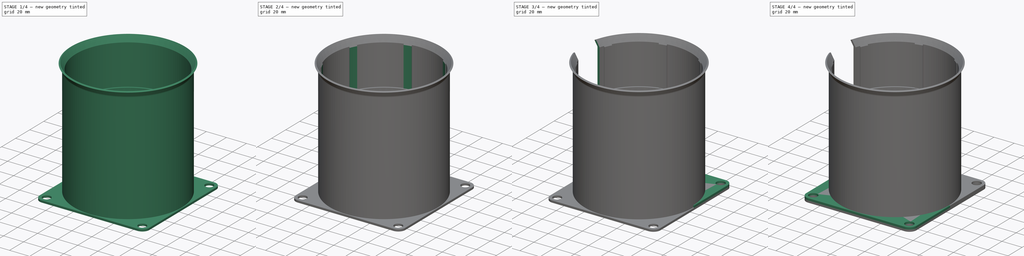
[diagram: build sequence overview — one tinted view per stage of 4, left to right]
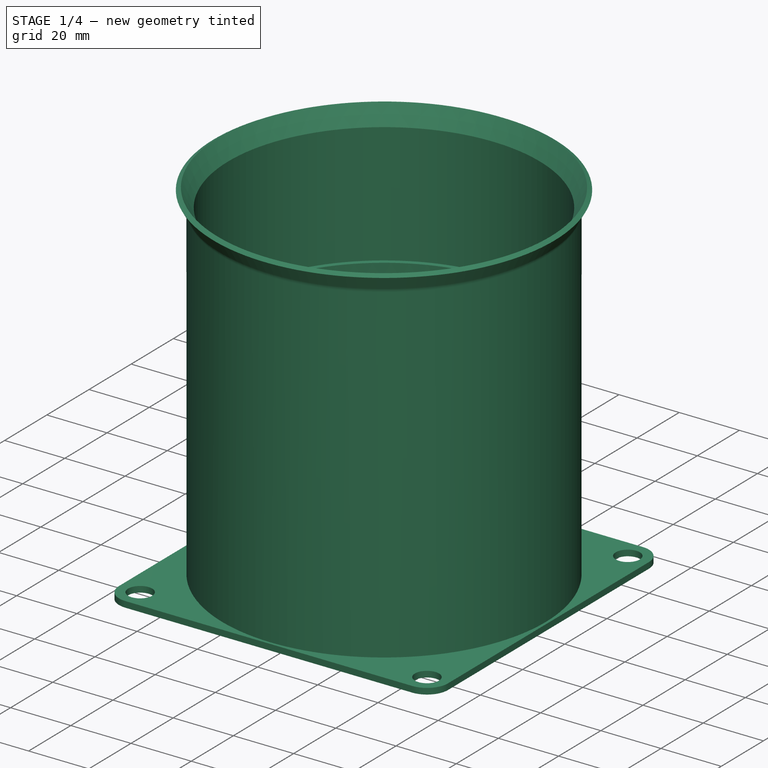
[diagram: stage 1 of 4 — iso view after this stage's code; geometry added in this stage tinted green]
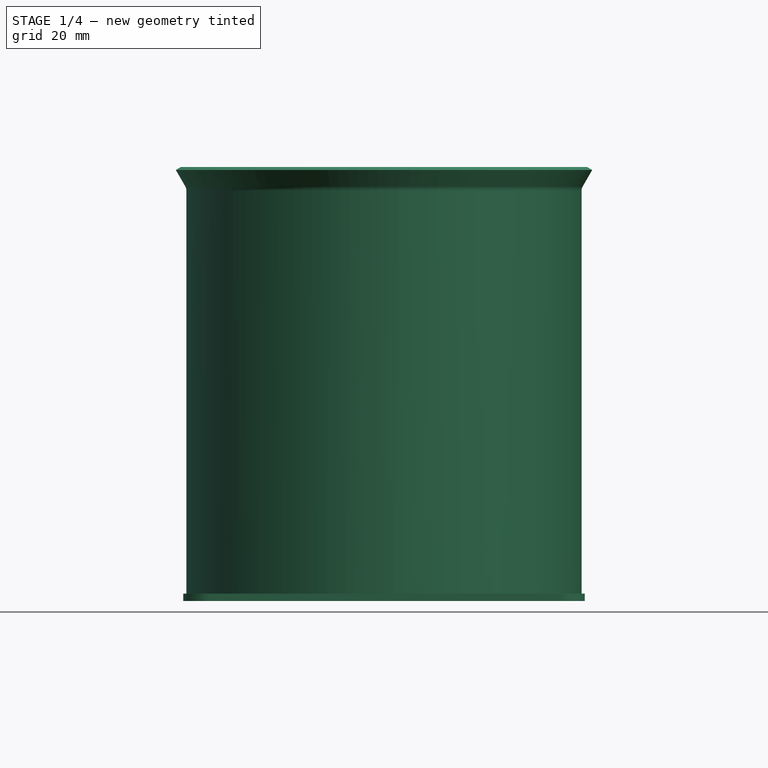
[diagram: stage 1 of 4 — front view after this stage's code; geometry added in this stage tinted green]
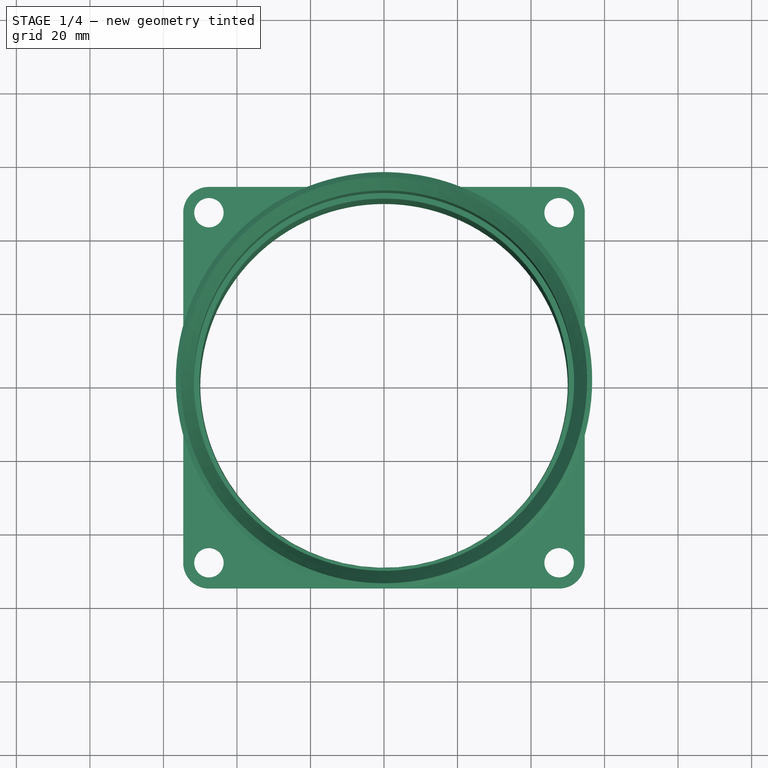
[diagram: stage 1 of 4 — top view after this stage's code; geometry added in this stage tinted green]
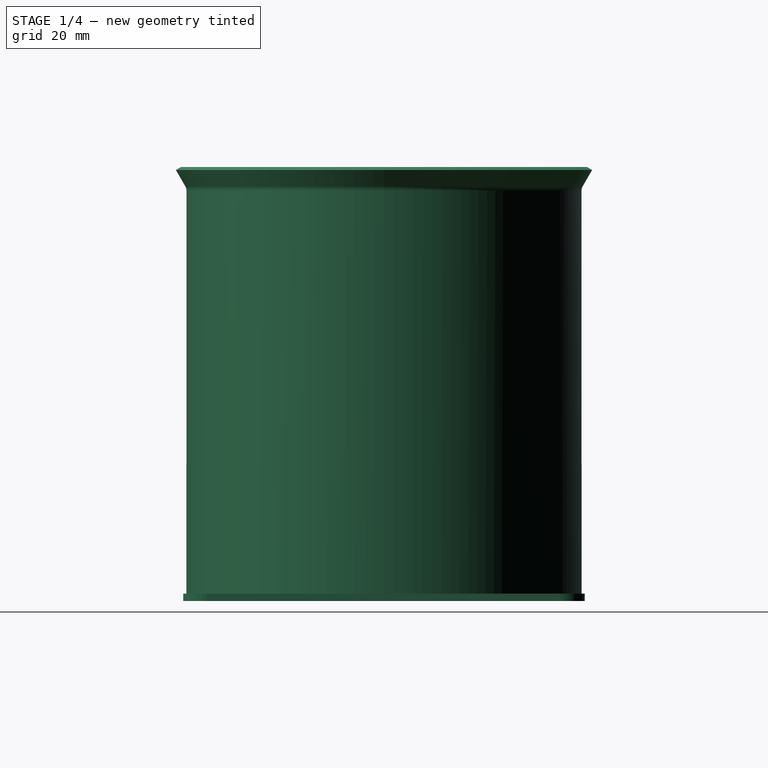
[diagram: stage 1 of 4 — right view after this stage's code; geometry added in this stage tinted green]
FCSTD DOCUMENT  (FreeCAD 0.20R29177 (Git))
Label: Фланец подложек26.01.22
License: All rights reserved
LicenseURL: http://en.wikipedia.org/wiki/All_rights_reserved
objects: Sketcher::SketchObject×11, PartDesign::Mirrored×7, PartDesign::MultiTransform×5, PartDesign::Pad×3, PartDesign::Revolution×3, PartDesign::PolarPattern×3, PartDesign::Body×3, PartDesign::Plane×2, PartDesign::Pocket×1
note: 45 computed .brp shape members not serialized (recipe doc carries the construction recipe); baked Part::Feature solids carry a one-line shape summary decoded from their .brp

FEATURE [Sketcher::SketchObject] Sketch
  FullyConstrained = false
  MapMode = 5
  Support = -> [XY_Plane]
  sketch-geometry (8):
    g0: LineSegment StartX=0 StartY=0 StartZ=0 EndX=84.7475 EndY=84.7475 EndZ=0
    g1: ArcOfCircle CenterX=47.625 CenterY=47.625 CenterZ=0 NormalX=0 NormalY=0 NormalZ=1 AngleXU=0 Radius=4 StartAngle=3.92699 EndAngle=7.06858
    g2: ArcOfCircle CenterX=47.625 CenterY=47.625 CenterZ=0 NormalX=0 NormalY=0 NormalZ=1 AngleXU=0 Radius=7 StartAngle=6.28319 EndAngle=7.06858
    g3: LineSegment StartX=54.625 StartY=47.625 StartZ=0 EndX=54.625 EndY=0 EndZ=0
    g4: ArcOfCircle CenterX=0 CenterY=0 CenterZ=0 NormalX=0 NormalY=0 NormalZ=1 AngleXU=0 Radius=50 StartAngle=0 EndAngle=0.785398
    g5: LineSegment StartX=35.3553 StartY=35.3553 StartZ=0 EndX=44.7966 EndY=44.7966 EndZ=0
    g6: LineSegment StartX=50.4534 StartY=50.4534 StartZ=0 EndX=52.5747 EndY=52.5747 EndZ=0
    g7: LineSegment StartX=50 StartY=0 StartZ=0 EndX=54.625 EndY=0 EndZ=0
  constraints (24):
    c: Coincident(g0,g-1)
    c: Angle(g-1,g0) = 0.785398
    c: PointOnObject(g1,g0)
    c: PointOnObject(g1,g0)
    c: PointOnObject(g1,g0)
    c: Distance(g1,g-1) = 47.625
    c: Diameter(g1) = 8
    c: Coincident(g2,g1)
    c: PointOnObject(g2,g0)
    c: Coincident(g3,g2)
    c: PointOnObject(g3,g-1)
    c: Vertical(g3)
    c: Diameter(g2) = 14
    c: Tangent(g2,g3)
    c: Coincident(g4,g-1)
    c: PointOnObject(g4,g-1)
    c: PointOnObject(g4,g0)
    c: Diameter(g4) = 100
    c: Coincident(g5,g4)
    c: Coincident(g5,g1)
    c: Coincident(g6,g1)
    c: Coincident(g6,g2)
    c: Coincident(g7,g4)
    c: Coincident(g7,g3)
FEATURE [PartDesign::Pad] Pad
  Direction = (1,1,1)
  Length = 2
  Length2 = 100
  Profile = -> Sketch
  Reversed = true
  Type = 0
FEATURE [Sketcher::SketchObject] Sketch001
  FullyConstrained = false
  MapMode = 5
  Placement = pos=(0,0,0) rot=(1,0,0;1.5708rad)
  Support = -> [XZ_Plane]
  sketch-geometry (10):
    g0: LineSegment StartX=50 StartY=0 StartZ=0 EndX=50 EndY=57.2808 EndZ=0
    g1: LineSegment StartX=50 StartY=57.2808 StartZ=0 EndX=50.2277 EndY=70 EndZ=0
    g2: LineSegment StartX=50.2277 StartY=70 StartZ=0 EndX=51.75 EndY=70 EndZ=0
    g3: LineSegment StartX=51.75 StartY=70 StartZ=0 EndX=51.75 EndY=110 EndZ=0
    g4: LineSegment StartX=51.75 StartY=110 StartZ=0 EndX=55.25 EndY=116.062 EndZ=0
    g5: LineSegment StartX=53.75 StartY=109.594 StartZ=0 EndX=53.75 EndY=0 EndZ=0
    g6: LineSegment StartX=53.75 StartY=0 StartZ=0 EndX=50 EndY=0 EndZ=0
    g7: ArcOfCircle CenterX=56.25 CenterY=109.594 CenterZ=0 NormalX=0 NormalY=0 NormalZ=1 AngleXU=0 Radius=2.5 StartAngle=2.61799 EndAngle=3.14159
    g8: LineSegment StartX=54.0849 StartY=110.844 StartZ=0 EndX=56.6356 EndY=115.262 EndZ=0
    g9: LineSegment StartX=56.6356 StartY=115.262 StartZ=0 EndX=55.25 EndY=116.062 EndZ=0
  constraints (31):
    c: PointOnObject(g0,g-1)
    c: Vertical(g0)
    c: Coincident(g0,g1)
    c: Coincident(g1,g2)
    c: Horizontal(g2)
    c: Coincident(g2,g3)
    c: Vertical(g3)
    c: Coincident(g3,g4)
    c: PointOnObject(g5,g-1)
    c: Vertical(g5)
    c: Coincident(g5,g6)
    c: Coincident(g6,g0)
    c: Distance(g0,g-2) = 50
    c: Distance(g3,g5) = 2
    c: Distance(g2,g-2) = 51.75
    c: DistanceX(g0,g2) = 1.75
    c: Angle(g3,g4) = 2.61799
    c: Distance(g3) = 40
    c: Coincident(g7,g5)
    c: Coincident(g8,g7)
    c: Coincident(g9,g8)
    c: Coincident(g9,g4)
    c: Parallel(g8,g4)
    c: Distance(g9) = 1.6
    c: Tangent(g7,g5)
    c: Tangent(g7,g8)
    c: Perpendicular(g8,g9)
    c: Diameter(g7) = 5
    c: Distance(g4) = 7
    c: Distance(g2,g-1) = 70
    c: Distance(g6) = 3.75
FEATURE [PartDesign::Revolution] Revolution
  Angle = 360
  Axis = (0,-2e-16,1)
  Base = (0,0,0)
  BaseFeature = -> Pad
  Profile = -> Sketch001
  ReferenceAxis = -> Sketch001 [V_Axis]
  Reversed = true
FEATURE [Sketcher::SketchObject] Sketch002
  ExternalGeometry = -> [Revolution]
  FullyConstrained = true
  MapMode = 5
  Placement = pos=(5e-15,-5e-15,0) rot=(-0.281085,0.678598,0.678598;3.68962rad)
  Support = -> [Revolution]
  sketch-geometry (4):
    g0: LineSegment StartX=-72.3017 StartY=2.79e-14 StartZ=0 EndX=-72.3017 EndY=50 EndZ=0
    g1: LineSegment StartX=-72.3017 StartY=50 StartZ=0 EndX=-77.3017 EndY=39.2775 EndZ=0
    g2: LineSegment StartX=-77.3017 StartY=39.2775 StartZ=0 EndX=-77.3017 EndY=0 EndZ=0
    g3: LineSegment StartX=-77.3017 StartY=0 StartZ=0 EndX=-72.3017 EndY=2.79e-14 EndZ=0
  constraints (11):
    c: Vertical(g0)
    c: Coincident(g0,g1)
    c: Coincident(g1,g2)
    c: PointOnObject(g2,g-1)
    c: Vertical(g2)
    c: Coincident(g2,g3)
    c: Coincident(g3,g0)
    c: Distance(g3) = 5
    c: Distance(g0) = 50
    c: Angle(g1,g0) = 0.436332
    c: Coincident(g0,g-3)
FEATURE [Sketcher::SketchObject] Sketch005
  FullyConstrained = false
  MapMode = 5
  Placement = pos=(0,0,0) rot=(1,0,0;1.5708rad)
  Support = -> [XZ_Plane]
  sketch-geometry (4):
    g0: LineSegment StartX=51.25 StartY=70 StartZ=0 EndX=51.25 EndY=109.134 EndZ=0
    g1: LineSegment StartX=51.75 StartY=110 StartZ=0 EndX=51.75 EndY=70 EndZ=0
    g2: LineSegment StartX=51.75 StartY=70 StartZ=0 EndX=51.25 EndY=70 EndZ=0
    g3: LineSegment StartX=51.75 StartY=110 StartZ=0 EndX=51.25 EndY=109.134 EndZ=0
  constraints (8):
    c: Coincident(g2,g1)
    c: Coincident(g2,g0)
    c: Horizontal(g2)
    c: Vertical(g0)
    c: Coincident(g3,g1)
    c: Coincident(g3,g0)
    c: Distance(g0,g1) = 0.5
    c: Angle(g3,g1) = 0.523599
FEATURE [PartDesign::Mirrored] Mirrored001
  MirrorPlane = -> XZ_Plane
FEATURE [PartDesign::PolarPattern] PolarPattern001
  Angle = 360
  Axis = -> Sketch005 [V_Axis]
  Occurrences = 7
FEATURE [PartDesign::Mirrored] Mirrored
  MirrorPlane = -> Sketch [H_Axis]
FEATURE [PartDesign::PolarPattern] PolarPattern
  Angle = 360
  Axis = -> Sketch [N_Axis]
  Occurrences = 4
FEATURE [PartDesign::MultiTransform] MultiTransform
  BaseFeature = -> Revolution
  Originals = -> [Pad]
  Transformations = -> [Mirrored,PolarPattern]
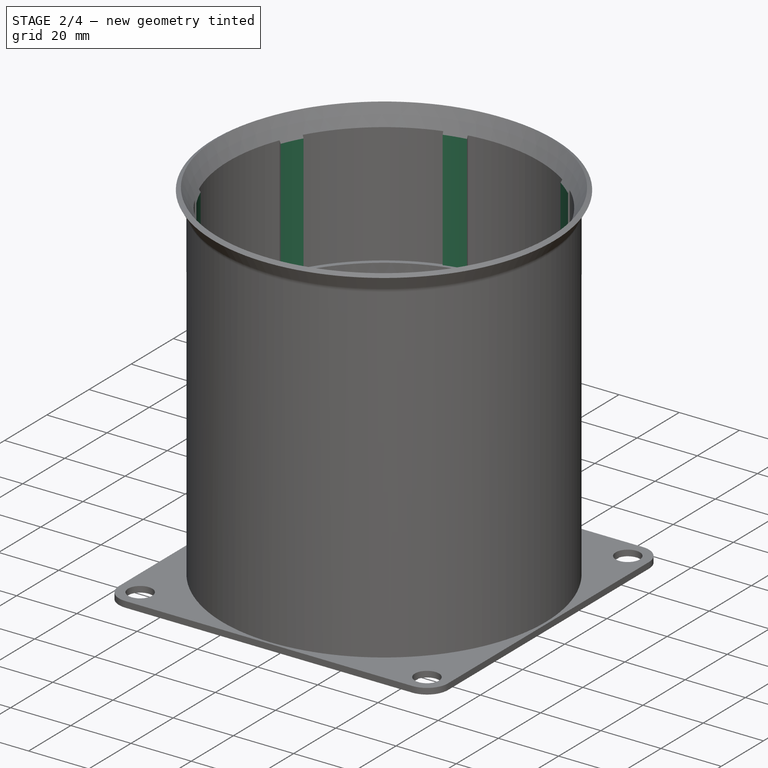
[diagram: stage 2 of 4 — iso view after this stage's code; geometry added in this stage tinted green]
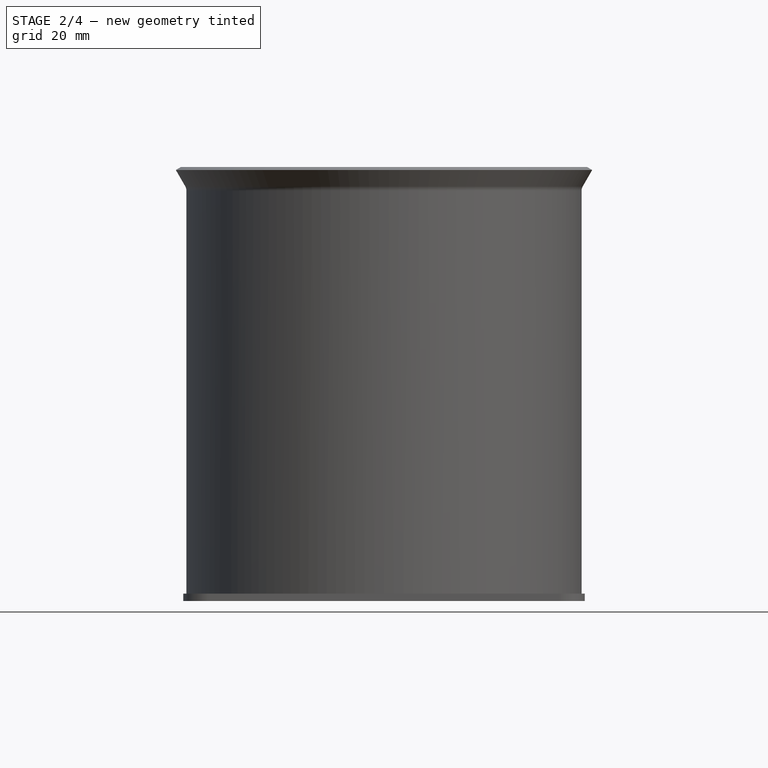
[diagram: stage 2 of 4 — front view after this stage's code; geometry added in this stage tinted green]
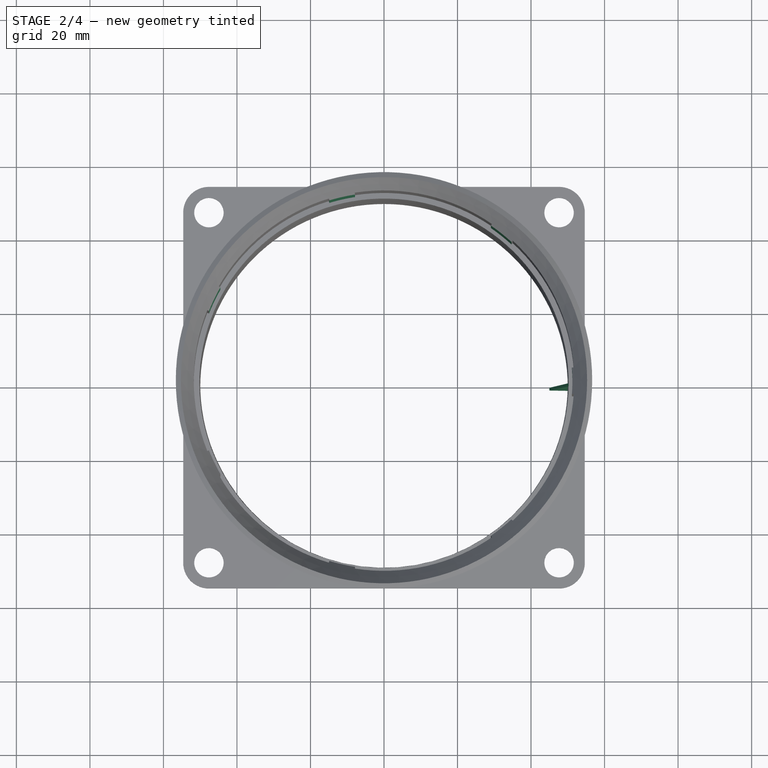
[diagram: stage 2 of 4 — top view after this stage's code; geometry added in this stage tinted green]
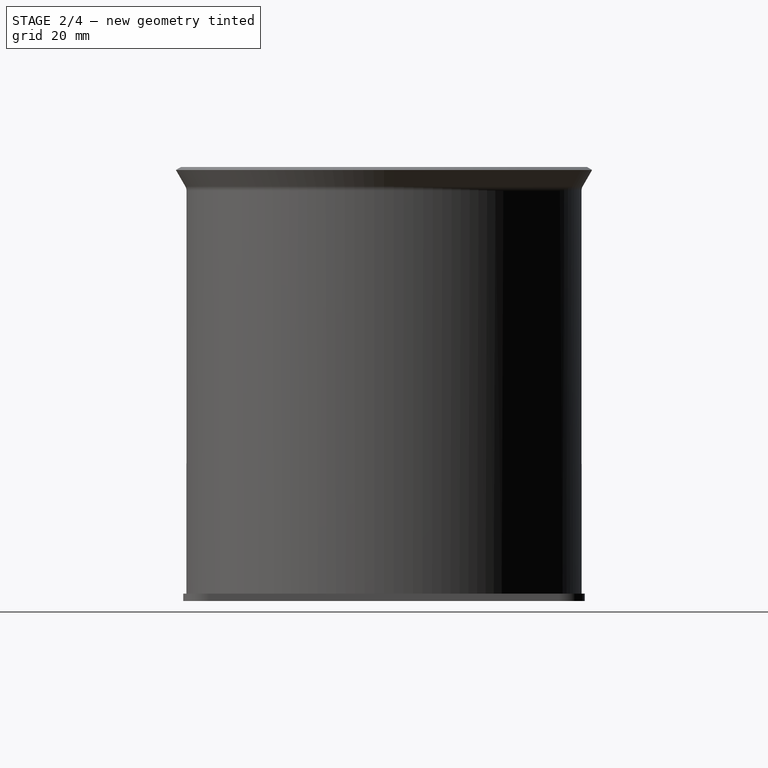
[diagram: stage 2 of 4 — right view after this stage's code; geometry added in this stage tinted green]
FEATURE [PartDesign::Plane] DatumPlane
  AttachmentOffset = pos=(0,0,0) rot=(0,1,0;1.5708rad)
  Length = 283.577
  MapMode = 7
  Placement = pos=(-50.4534,-50.4534,0) rot=(-0.281085,0.678598,0.678598;3.68962rad)
  ResizeMode = 0
  Support = -> [MultiTransform]
  Width = 259.699
FEATURE [Sketcher::SketchObject] Sketch003
  FullyConstrained = false
  MapMode = 5
  Placement = pos=(-50.4534,-50.4534,0) rot=(-0.281085,0.678598,0.678598;3.68962rad)
  Support = -> [DatumPlane]
  sketch-geometry (4):
    g0: ArcOfCircle CenterX=37.7568 CenterY=0 CenterZ=0 NormalX=0 NormalY=0 NormalZ=1 AngleXU=0 Radius=10 StartAngle=4.71239 EndAngle=7.85398
    g1: LineSegment StartX=37.7568 StartY=10 StartZ=0 EndX=0 EndY=10 EndZ=0
    g2: LineSegment StartX=37.7568 StartY=-10 StartZ=0 EndX=0 EndY=-10 EndZ=0
    g3: LineSegment StartX=0 StartY=-10 StartZ=0 EndX=0 EndY=10 EndZ=0
  constraints (10):
    c: PointOnObject(g0,g-1)
    c: Diameter(g0) = 20
    c: Tangent(g0,g1) = -1.5708
    c: Tangent(g0,g2) = 1.5708
    c: Coincident(g2,g3)
    c: PointOnObject(g3,g-2)
    c: Vertical(g3)
    c: Horizontal(g1)
    c: Horizontal(g2)
    c: Coincident(g3,g1)
FEATURE [Sketcher::SketchObject] Sketch004
  ExternalGeometry = -> [MultiTransform]
  FullyConstrained = false
  MapMode = 5
  Placement = pos=(-50.4534,-50.4534,0) rot=(-0.281085,0.678598,0.678598;3.68962rad)
  Support = -> [DatumPlane]
  sketch-geometry (8):
    g0: LineSegment StartX=-26.1242 StartY=69.3905 StartZ=0 EndX=-10.2428 EndY=69.3905 EndZ=0
    g1: LineSegment StartX=-10.2428 StartY=69.3905 StartZ=0 EndX=-10.2428 EndY=-65.5211 EndZ=0
    g2: LineSegment StartX=-10.2428 StartY=-65.5211 StartZ=0 EndX=-26.1242 EndY=-65.5211 EndZ=0
    g3: LineSegment StartX=-26.1242 StartY=-65.5211 StartZ=0 EndX=-26.1242 EndY=69.3905 EndZ=0
    g4: LineSegment StartX=-26.3519 StartY=75.8693 StartZ=0 EndX=86.9393 EndY=75.8693 EndZ=0
    g5: LineSegment StartX=86.9393 StartY=75.8693 StartZ=0 EndX=86.9393 EndY=-81.5275 EndZ=0
    g6: LineSegment StartX=86.9393 StartY=-81.5275 StartZ=0 EndX=-26.3519 EndY=-81.5275 EndZ=0
    g7: LineSegment StartX=-26.3519 StartY=-81.5275 StartZ=0 EndX=-26.3519 EndY=75.8693 EndZ=0
  constraints (18):
    c: Coincident(g0,g1)
    c: Coincident(g1,g2)
    c: Coincident(g2,g3)
    c: Coincident(g3,g0)
    c: Horizontal(g0)
    c: Horizontal(g2)
    c: Vertical(g1)
    c: Vertical(g3)
    c: Coincident(g4,g5)
    c: Coincident(g5,g6)
    c: Coincident(g6,g7)
    c: Coincident(g7,g4)
    c: Horizontal(g4)
    c: Horizontal(g6)
    c: Vertical(g5)
    c: Vertical(g7)
    c: Distance(g-4,g7) = 5
    c: Distance(g-3,g3) = 5
FEATURE [PartDesign::Revolution] Revolution002
  Angle = 4
  Axis = (0,-2e-16,1)
  Base = (0,0,0)
  BaseFeature = -> MultiTransform
  Profile = -> Sketch005
  ReferenceAxis = -> Sketch005 [V_Axis]
  Reversed = true
FEATURE [PartDesign::MultiTransform] MultiTransform001
  BaseFeature = -> Revolution002
  Originals = -> [Revolution002]
  Transformations = -> [Mirrored001,PolarPattern001]
FEATURE [PartDesign::Body] Body002
  Group = -> [Sketch007,Pad002,MultiTransform003,Mirrored004,Mirrored005]
  Origin = -> Origin002
  Tip = -> MultiTransform003
FEATURE [PartDesign::Plane] DatumPlane001
  Length = 243.45
  MapMode = 13
  Placement = pos=(-10.2146,50.1085,83.0447) rot=(0.987542,0.111269,0.111269;1.58333rad)
  ResizeMode = 0
  Support = -> [MultiTransform001]
  Width = 256.09
FEATURE [Sketcher::SketchObject] Sketch008
  ExternalGeometry = -> [MultiTransform001]
  FullyConstrained = false
  MapMode = 5
  Placement = pos=(-10.2146,50.1085,83.0447) rot=(0.987542,0.111269,0.111269;1.58333rad)
  Support = -> [DatumPlane001]
  sketch-geometry (6):
    g0: ArcOfCircle CenterX=-1.21918 CenterY=-7.31322 CenterZ=0 NormalX=0 NormalY=0 NormalZ=1 AngleXU=0 Radius=10 StartAngle=3.14159 EndAngle=6.28318
    g1: LineSegment StartX=-11.2192 StartY=-7.31323 StartZ=0 EndX=-11.2192 EndY=49.9058 EndZ=0
    g2: LineSegment StartX=8.78082 StartY=-7.31323 StartZ=0 EndX=8.78082 EndY=49.9058 EndZ=0
    g3: LineSegment StartX=-11.2192 StartY=49.9058 StartZ=0 EndX=8.78082 EndY=49.9058 EndZ=0
    g4: LineSegment StartX=-1.21918 StartY=-7.31322 StartZ=0 EndX=-4.76669 EndY=-7.94042 EndZ=0
    g5: LineSegment StartX=-1.21918 StartY=-7.31322 StartZ=0 EndX=2.38335 EndY=-7.31322 EndZ=0
  constraints (16):
    c: Coincident(g1,g0)
    c: Vertical(g1)
    c: Coincident(g2,g0)
    c: Vertical(g2)
    c: Tangent(g0,g2)
    c: Tangent(g0,g1)
    c: Coincident(g3,g2)
    c: Horizontal(g3)
    c: Diameter(g0) = 20
    c: Coincident(g4,g0)
    c: PointOnObject(g4,g-4)
    c: Coincident(g5,g0)
    c: PointOnObject(g5,g-3)
    c: Horizontal(g5)
    c: Equal(g5,g4)
    c: Coincident(g1,g3)
FEATURE [Sketcher::SketchObject] Sketch009
  FullyConstrained = true
  MapMode = 5
  Placement = pos=(0,0,0) rot=(1,0,0;1.5708rad)
  Support = -> [XZ_Plane]
  sketch-geometry (6):
    g0: LineSegment StartX=50.2287 StartY=69.9979 StartZ=0 EndX=45 EndY=-2 EndZ=0
    g1: LineSegment StartX=45 StartY=0 StartZ=0 EndX=50 EndY=0 EndZ=0
    g2: LineSegment StartX=50 StartY=0 StartZ=0 EndX=50 EndY=57.28 EndZ=0
    g3: LineSegment StartX=50 StartY=57.28 StartZ=0 EndX=50.2287 EndY=69.9979 EndZ=0
    g4: LineSegment StartX=50 StartY=0 StartZ=0 EndX=50 EndY=-2 EndZ=0
    g5: LineSegment StartX=50 StartY=-2 StartZ=0 EndX=45 EndY=-2 EndZ=0
  constraints (18):
    c: PointOnObject(g1,g-1)
    c: Coincident(g2,g1)
    c: Coincident(g3,g2)
    c: Coincident(g3,g0)
    c: DistanceX(g-1,g1) = 45
    c: Coincident(g4,g2)
    c: Vertical(g4)
    c: Vertical(g1,g0)
    c: Distance(g4) = 2
    c: Coincident(g5,g4)
    c: Horizontal(g5)
    c: Coincident(g0,g5)
    c: Distance(g2) = 57.28
    c: Vertical(g2)
    c: Angle(g2,g3) = 3.12362
    c: Distance(g3) = 12.72
    c: Horizontal(g1)
    c: Distance(g2,g-1) = 50
FEATURE [PartDesign::Revolution] Revolution003
  Angle = 0.95493
  Axis = (0,-2e-16,1)
  Base = (0,0,0)
  BaseFeature = -> MultiTransform001
  Profile = -> Sketch009
  ReferenceAxis = -> Sketch009 [V_Axis]
  Reversed = true
  expr: Angle = 0.8 / (pi * 96 / 360)
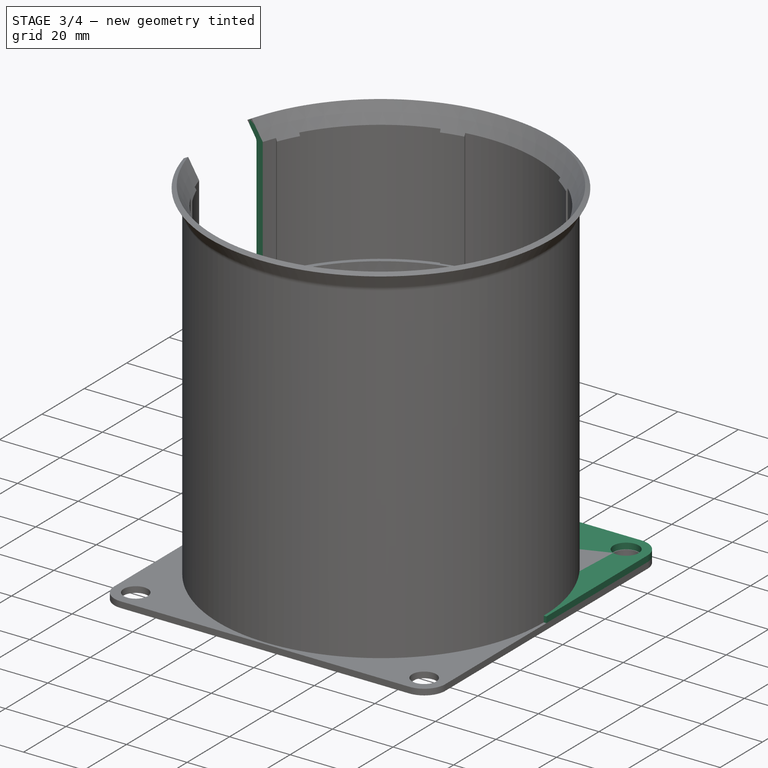
[diagram: stage 3 of 4 — iso view after this stage's code; geometry added in this stage tinted green]
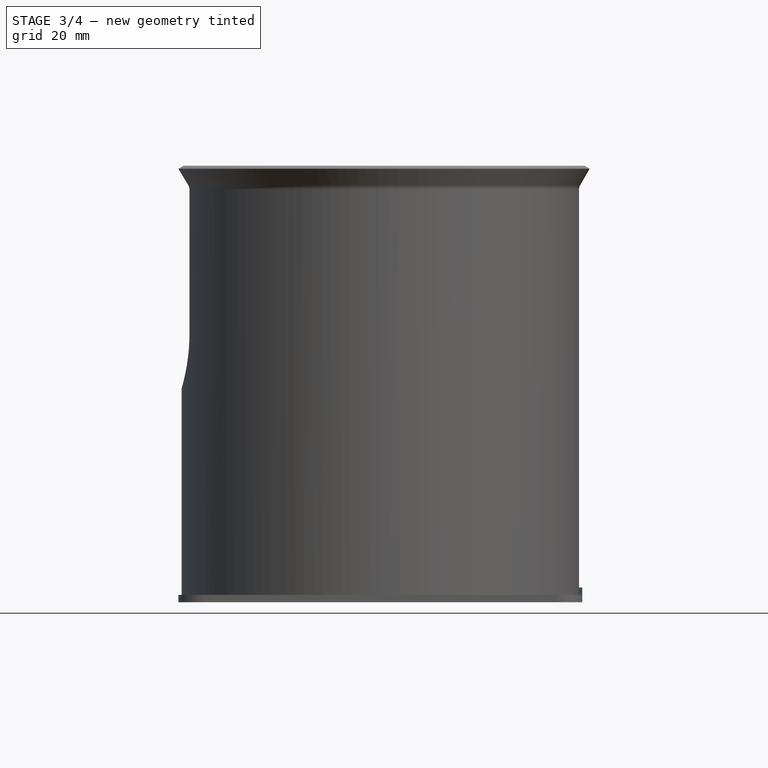
[diagram: stage 3 of 4 — front view after this stage's code; geometry added in this stage tinted green]
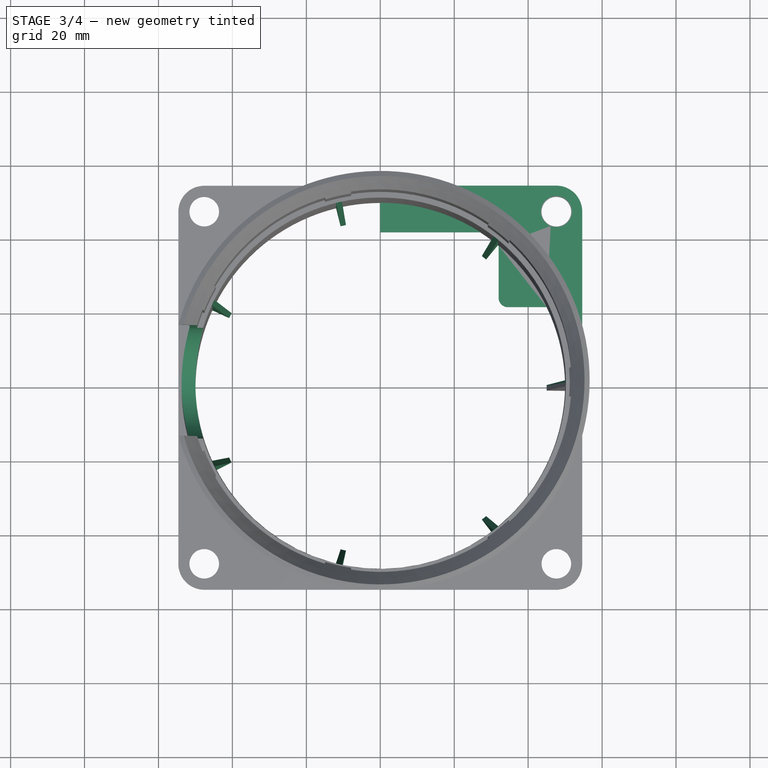
[diagram: stage 3 of 4 — top view after this stage's code; geometry added in this stage tinted green]
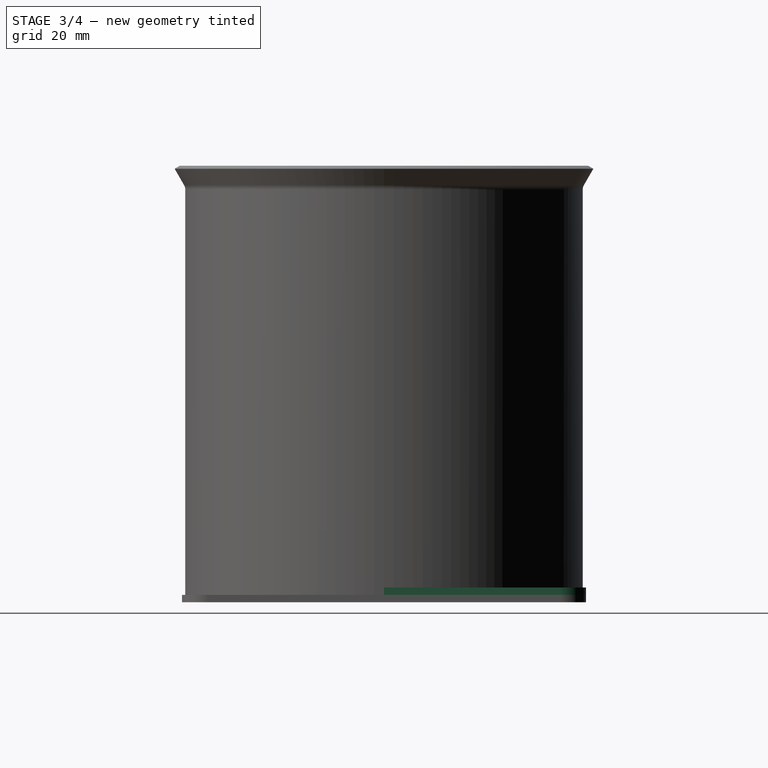
[diagram: stage 3 of 4 — right view after this stage's code; geometry added in this stage tinted green]
FEATURE [PartDesign::Body] Body001
  Group = -> [Sketch006,Pad001,MultiTransform002,Mirrored002,Mirrored003]
  Origin = -> Origin001
  Tip = -> MultiTransform002
FEATURE [Sketcher::SketchObject] Sketch007
  FullyConstrained = true
  MapMode = 5
  Support = -> [XY_Plane002]
  sketch-geometry (16):
    g0: ArcOfCircle CenterX=0 CenterY=0 CenterZ=0 NormalX=0 NormalY=0 NormalZ=1 AngleXU=0 Radius=50 StartAngle=0.876298 EndAngle=0.997283
    g1: Circle CenterX=47.625 CenterY=47.625 CenterZ=0 NormalX=0 NormalY=0 NormalZ=1 AngleXU=0 Radius=4.2
    g2: LineSegment StartX=32 StartY=38.4187 StartZ=0 EndX=32 EndY=0 EndZ=0
    g3: GeomPoint X=50 Y=0 Z=0
    g4: GeomPoint X=45.0022 Y=21.79 Z=0
    g5: ArcOfCircle CenterX=34.5 CenterY=24.29 CenterZ=0 NormalX=0 NormalY=0 NormalZ=1 AngleXU=0 Radius=2.5 StartAngle=3.14159 EndAngle=4.71239
    g6: LineSegment StartX=32 StartY=24.29 StartZ=0 EndX=32 EndY=38.4187 EndZ=0
    g7: LineSegment StartX=34.5 StartY=21.79 StartZ=0 EndX=45.0022 EndY=21.79 EndZ=0
    g8: ArcOfCircle CenterX=0 CenterY=0 CenterZ=0 NormalX=0 NormalY=0 NormalZ=1 AngleXU=0 Radius=50 StartAngle=0 EndAngle=0.450927
    g9: LineSegment StartX=27.1293 StartY=42 StartZ=0 EndX=0 EndY=42 EndZ=0
    g10: GeomPoint X=0 Y=50 Z=0
    g11: LineSegment StartX=0 StartY=42 StartZ=0 EndX=0 EndY=54.625 EndZ=0
    g12: LineSegment StartX=0 StartY=54.625 StartZ=0 EndX=47.625 EndY=54.625 EndZ=0
    g13: LineSegment StartX=50 StartY=0 StartZ=0 EndX=54.625 EndY=0 EndZ=0
    g14: LineSegment StartX=54.625 StartY=0 StartZ=0 EndX=54.625 EndY=47.625 EndZ=0
    g15: ArcOfCircle CenterX=47.625 CenterY=47.625 CenterZ=0 NormalX=0 NormalY=0 NormalZ=1 AngleXU=0 Radius=7 StartAngle=5.01984e-07 EndAngle=1.5708
  constraints (44):
    c: Diameter(g0) = 100
    c: DistanceX(g1) = 47.625
    c: DistanceY(g1) = 47.625
    c: Coincident(g0,g-1)
    c: Coincident(g2,g0)
    c: PointOnObject(g2,g-1)
    c: Vertical(g2)
    c: PointOnObject(g3,g-1)
    c: PointOnObject(g3,g0)
    c: Distance(g3,g2) = 18
    c: PointOnObject(g5,g2)
    c: Coincident(g6,g5)
    c: Coincident(g6,g0)
    c: Coincident(g7,g5)
    c: Coincident(g7,g4)
    c: Horizontal(g7)
    c: Coincident(g8,g0)
    c: Coincident(g8,g7)
    c: Coincident(g8,g3)
    c: Diameter(g5) = 5
    c: Tangent(g6,g5)
    c: Tangent(g5,g7)
    c: Coincident(g9,g0)
    c: PointOnObject(g9,g-2)
    c: Horizontal(g9)
    c: PointOnObject(g10,g-2)
    c: PointOnObject(g10,g0)
    c: Distance(g10,g9) = 8
    c: Coincident(g11,g9)
    c: PointOnObject(g11,g-2)
    c: Coincident(g12,g11)
    c: Horizontal(g12)
    c: Coincident(g13,g8)
    c: PointOnObject(g13,g-1)
    c: Coincident(g14,g13)
    c: Vertical(g14)
    c: Coincident(g15,g1)
    c: Coincident(g15,g12)
    c: Coincident(g15,g14)
    c: Tangent(g12,g15)
    c: Tangent(g15,g14)
    c: Diameter(g15) = 14
    c: Diameter(g1) = 8.4
    c: Distance(g7,g-1) = 21.79
FEATURE [PartDesign::Pad] Pad002
  Direction = (1,1,1)
  Length = 2
  Length2 = 100
  Profile = -> Sketch007
  Type = 0
FEATURE [PartDesign::Mirrored] Mirrored006
  MirrorPlane = -> XZ_Plane
FEATURE [PartDesign::PolarPattern] PolarPattern002
  Angle = 360
  Axis = -> Sketch009 [V_Axis]
  Occurrences = 7
FEATURE [PartDesign::MultiTransform] MultiTransform004
  BaseFeature = -> Revolution003
  Originals = -> [Revolution003]
  Transformations = -> [Mirrored006,PolarPattern002]
FEATURE [Sketcher::SketchObject] Sketch010
  FullyConstrained = false
  MapMode = 5
  Placement = pos=(0,0,0) rot=(0.57735,0.57735,0.57735;2.0944rad)
  Support = -> [YZ_Plane]
  sketch-geometry (4):
    g0: ArcOfCircle CenterX=0 CenterY=70.7472 CenterZ=0 NormalX=0 NormalY=0 NormalZ=1 AngleXU=0 Radius=15 StartAngle=3.14159 EndAngle=6.28319
    g1: LineSegment StartX=-15 StartY=70.7472 StartZ=0 EndX=-15 EndY=141.777 EndZ=0
    g2: LineSegment StartX=-15 StartY=141.777 StartZ=0 EndX=15 EndY=141.777 EndZ=0
    g3: LineSegment StartX=15 StartY=141.777 StartZ=0 EndX=15 EndY=70.7472 EndZ=0
  constraints (11):
    c: PointOnObject(g0,g-2)
    c: Coincident(g1,g2)
    c: Coincident(g2,g3)
    c: Horizontal(g2)
    c: Vertical(g1)
    c: Vertical(g3)
    c: Tangent(g0,g3)
    c: Tangent(g0,g1)
    c: Diameter(g0) = 30
    c: Coincident(g0,g3)
    c: Coincident(g0,g1)
FEATURE [PartDesign::Pocket] Pocket
  BaseFeature = -> MultiTransform004
  Direction = (1,1,1)
  Length = 5
  Length2 = 100
  Profile = -> Sketch010
  Type = 1
FEATURE [PartDesign::Body] Body
  Group = -> [Sketch,Pad,Sketch001,Revolution,Sketch002,MultiTransform,Mirrored,PolarPattern,DatumPlane,Sketch003,Sketch004,Sketch005,Revolution002,MultiTransform001,Mirrored001,PolarPattern001,DatumPlane001,Sketch008,Sketch009,Revolution003,MultiTransform004,Mirrored006,PolarPattern002,Sketch010,Pocket]
  Origin = -> Origin
  Tip = -> Pocket
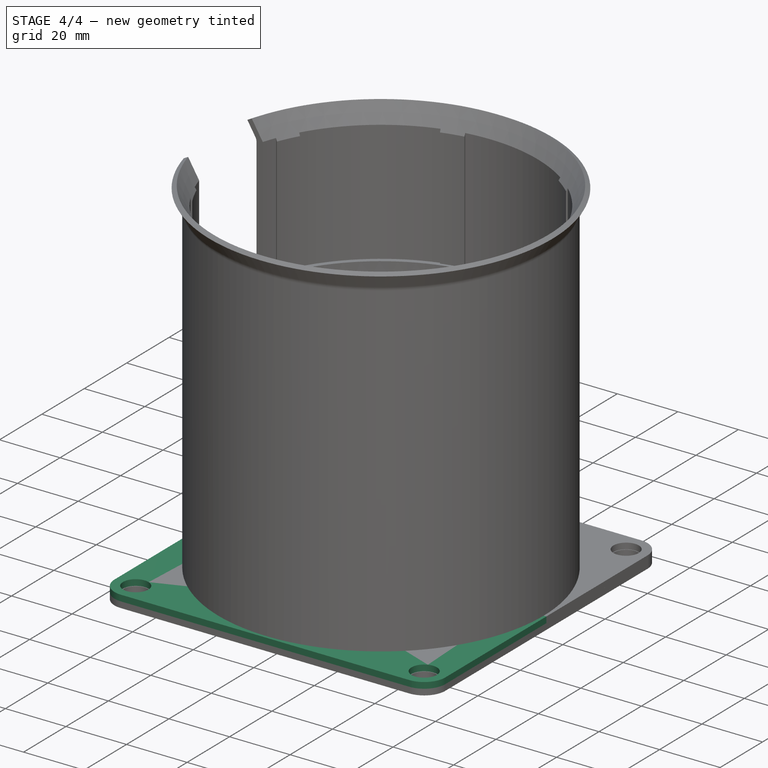
[diagram: stage 4 of 4 — iso view after this stage's code; geometry added in this stage tinted green]
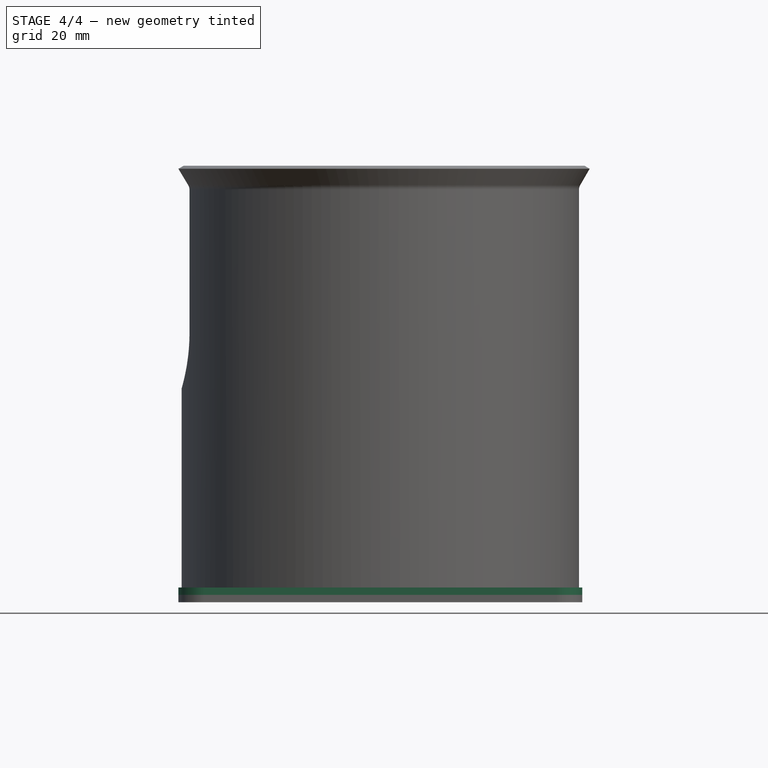
[diagram: stage 4 of 4 — front view after this stage's code; geometry added in this stage tinted green]
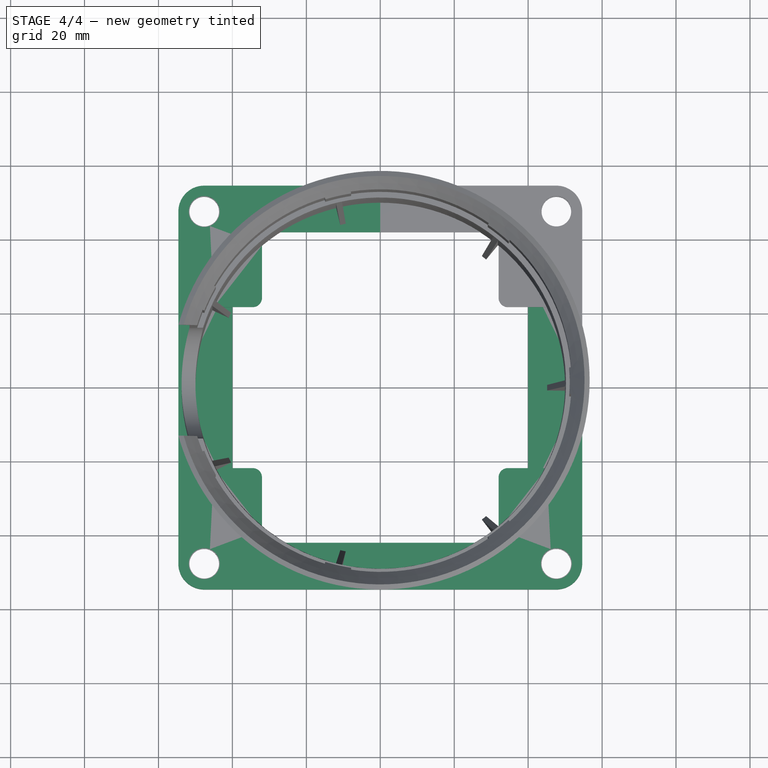
[diagram: stage 4 of 4 — top view after this stage's code; geometry added in this stage tinted green]
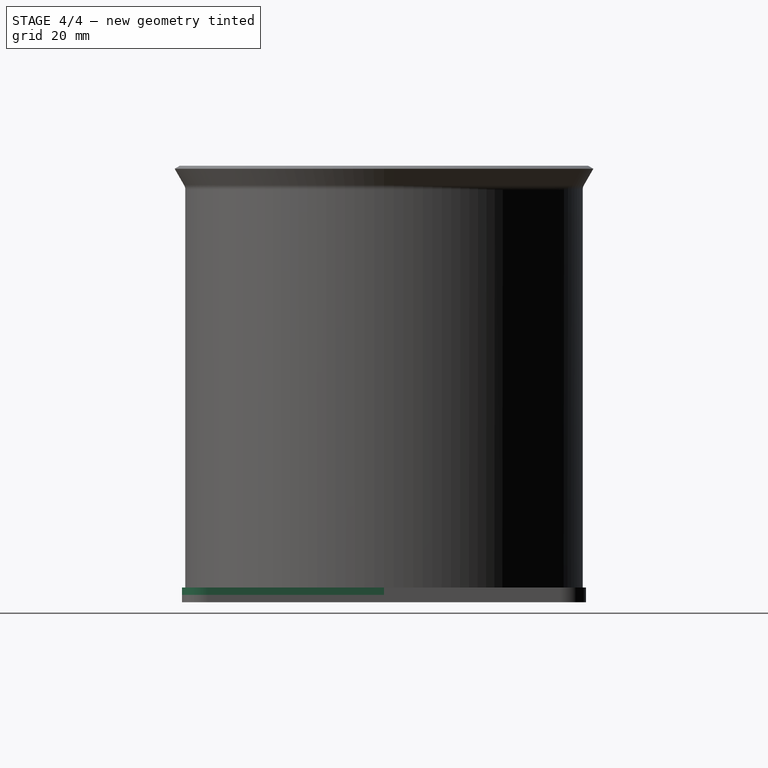
[diagram: stage 4 of 4 — right view after this stage's code; geometry added in this stage tinted green]
FEATURE [Sketcher::SketchObject] Sketch006
  FullyConstrained = true
  MapMode = 5
  Support = -> [XY_Plane001]
  sketch-geometry (16):
    g0: ArcOfCircle CenterX=0 CenterY=0 CenterZ=0 NormalX=0 NormalY=0 NormalZ=1 AngleXU=0 Radius=50 StartAngle=1.5708 EndAngle=1.88025
    g1: LineSegment StartX=-40 StartY=6.1e-15 StartZ=0 EndX=-40 EndY=30 EndZ=0
    g2: GeomPoint X=-50 Y=6.1e-15 Z=0
    g3: LineSegment StartX=3.1e-15 StartY=50 StartZ=0 EndX=3.1e-15 EndY=47 EndZ=0
    g4: LineSegment StartX=3.1e-15 StartY=47 StartZ=0 EndX=-17.0587 EndY=47 EndZ=0
    g5: LineSegment StartX=-40 StartY=6.1e-15 StartZ=0 EndX=-50 EndY=6.1e-15 EndZ=0
    g6: Circle CenterX=-47.625 CenterY=47.625 CenterZ=0 NormalX=0 NormalY=0 NormalZ=1 AngleXU=0 Radius=4.2
    g7: LineSegment StartX=-47.625 StartY=47.625 StartZ=0 EndX=-47.625 EndY=0 EndZ=0
    g8: LineSegment StartX=-47.625 StartY=47.625 StartZ=0 EndX=0 EndY=47.625 EndZ=0
    g9: ArcOfCircle CenterX=-47.625 CenterY=47.625 CenterZ=0 NormalX=0 NormalY=0 NormalZ=1 AngleXU=0 Radius=7 StartAngle=1.57079 EndAngle=3.1416
    g10: LineSegment StartX=-47.625 StartY=54.625 StartZ=0 EndX=0 EndY=54.625 EndZ=0
    g11: LineSegment StartX=-54.625 StartY=47.625 StartZ=0 EndX=-54.625 EndY=0 EndZ=0
    g12: ArcOfCircle CenterX=0 CenterY=0 CenterZ=0 NormalX=0 NormalY=0 NormalZ=1 AngleXU=0 Radius=50 StartAngle=2.83214 EndAngle=3.14159
    g13: LineSegment StartX=-54.625 StartY=0 StartZ=0 EndX=-50 EndY=6.1e-15 EndZ=0
    g14: LineSegment StartX=3.1e-15 StartY=50 StartZ=0 EndX=0 EndY=54.625 EndZ=0
    g15: ArcOfCircle CenterX=0 CenterY=0 CenterZ=0 NormalX=0 NormalY=0 NormalZ=1 AngleXU=0 Radius=50 StartAngle=1.91896 EndAngle=2.49809
  constraints (46):
    c: Coincident(g0,g-1)
    c: Diameter(g0) = 100
    c: Vertical(g1)
    c: PointOnObject(g2,g-1)
    c: Distance(g2,g1) = 10
    c: PointOnObject(g3,g-2)
    c: Vertical(g3)
    c: Coincident(g4,g3)
    c: Horizontal(g4)
    c: Coincident(g5,g2)
    c: Horizontal(g5)
    c: Distance(g3) = 3
    c: Coincident(g1,g5)
    c: Coincident(g0,g3)
    c: Coincident(g12,g5)
    c: Coincident(g7,g6)
    c: PointOnObject(g7,g-1)
    c: Vertical(g7)
    c: Coincident(g8,g6)
    c: PointOnObject(g8,g-2)
    c: Horizontal(g8)
    c: Equal(g7,g8)
    c: Distance(g8) = 47.625
    c: Diameter(g6) = 8.4
    c: Coincident(g9,g6)
    c: Coincident(g10,g9)
    c: PointOnObject(g10,g-2)
    c: Horizontal(g10)
    c: Coincident(g11,g9)
    c: PointOnObject(g11,g-1)
    c: Vertical(g11)
    c: Tangent(g10,g9)
    c: Tangent(g11,g9)
    c: Equal(g0,g12)
    c: Coincident(g15,g1)
    c: PointOnObject(g12,g7)
    c: Coincident(g0,g12)
    c: Coincident(g13,g11)
    c: Coincident(g13,g5)
    c: Coincident(g14,g0)
    c: Coincident(g14,g10)
    c: Equal(g0,g15)
    c: PointOnObject(g0,g8)
    c: Coincident(g15,g4)
    c: Coincident(g0,g15)
    c: Diameter(g9) = 14
FEATURE [PartDesign::Pad] Pad001
  Direction = (1,1,1)
  Length = 2
  Length2 = 100
  Profile = -> Sketch006
  Reversed = true
  Type = 0
FEATURE [PartDesign::Mirrored] Mirrored002
  MirrorPlane = -> Sketch006 [V_Axis]
FEATURE [PartDesign::Mirrored] Mirrored003
  MirrorPlane = -> Sketch006 [H_Axis]
FEATURE [PartDesign::MultiTransform] MultiTransform002
  BaseFeature = -> Pad001
  Originals = -> [Pad001]
  Transformations = -> [Mirrored002,Mirrored003]
FEATURE [PartDesign::Mirrored] Mirrored004
  MirrorPlane = -> Sketch007 [V_Axis]
FEATURE [PartDesign::Mirrored] Mirrored005
  MirrorPlane = -> Sketch007 [H_Axis]
FEATURE [PartDesign::MultiTransform] MultiTransform003
  BaseFeature = -> Pad002
  Originals = -> [Pad002]
  Transformations = -> [Mirrored004,Mirrored005]
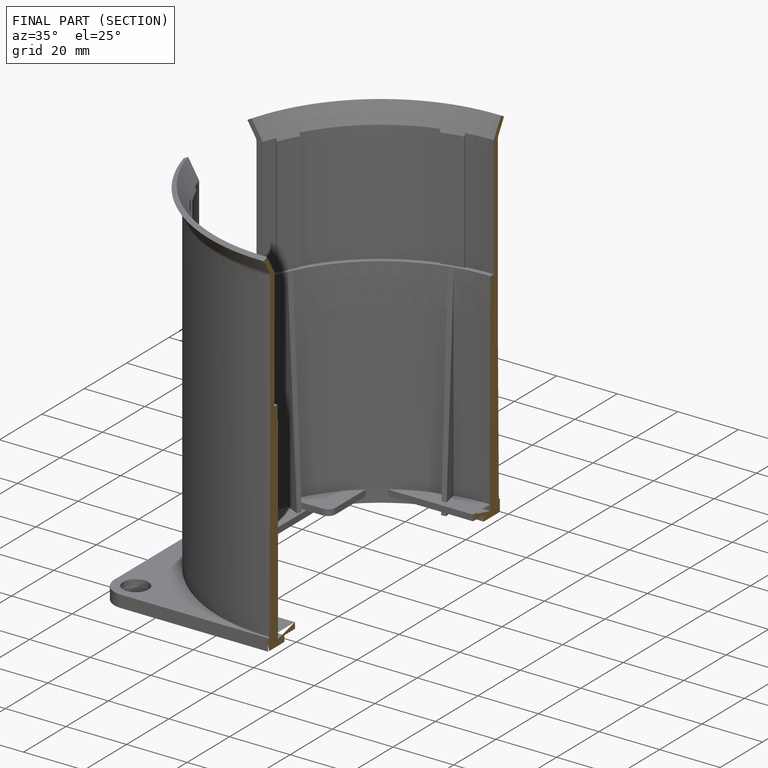
[diagram: finished part — half-section view (interior)]
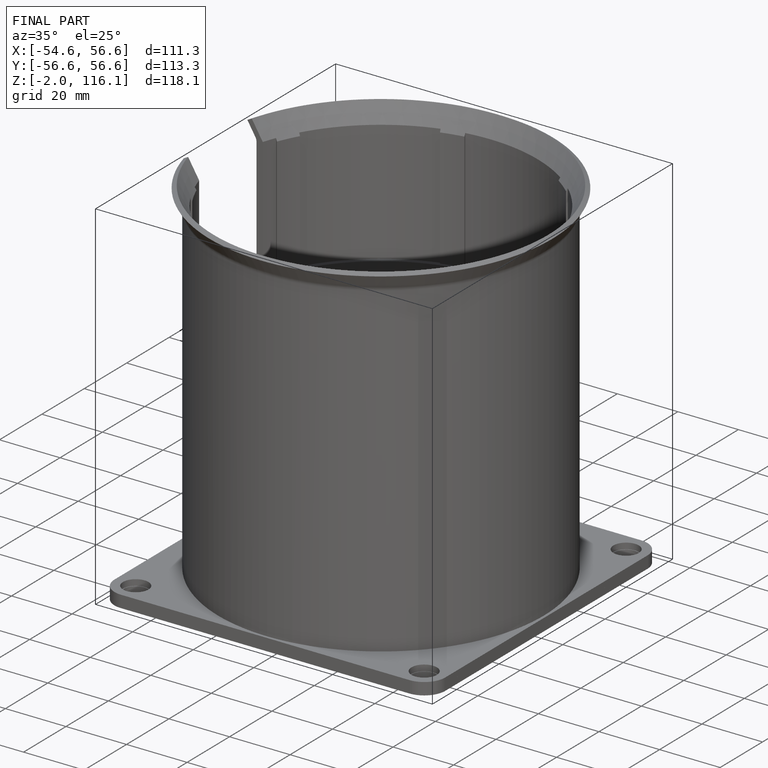
[diagram: finished part — iso view with bounding-box wireframe]
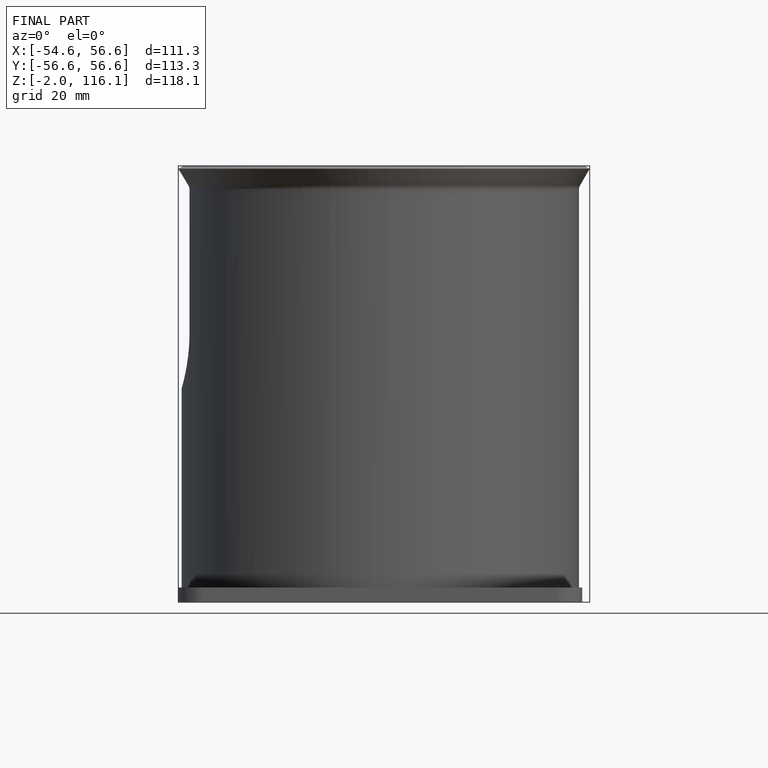
[diagram: finished part — front view with bounding-box wireframe]
